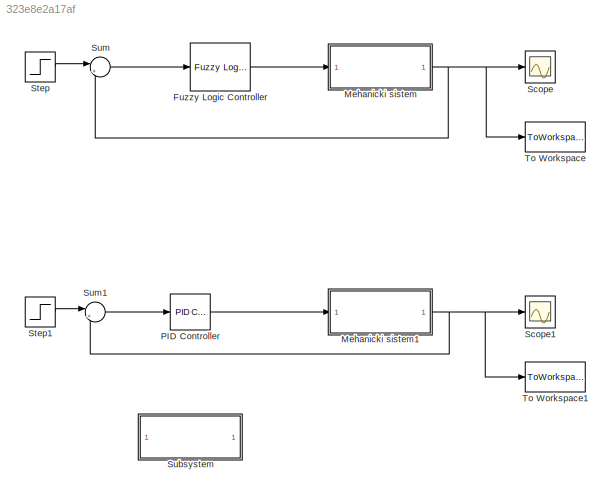
MODEL slx_323e8e2a17af
KIND model
CONFIG AbsTol = auto
CONFIG EnableMultiTasking = off
CONFIG FixedStep = auto
CONFIG MaxStep = auto
CONFIG MinStep = auto
CONFIG RelTol = 1e-3
CONFIG SampleTimeConstraint = Unconstrained
CONFIG Solver = VariableStepAuto
CONFIG SolverName = VariableStepAuto
CONFIG StartTime = 0.0
CONFIG StopTime = 10
BLOCK [Reference] Fuzzy Logic  Controller  REF=fuzblock/Fuzzy Logic   (lib defined in mdl_858b3b3e7478)
Controller
  Ports = [1, 1]
  SourceBlock = fuzblock/Fuzzy Logic \nController
  SourceProductBaseCode = FL
  SourceType = Fuzzy Inference System
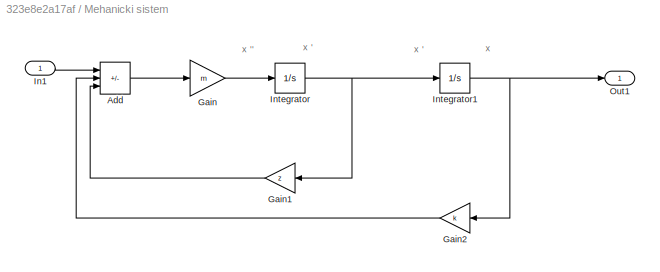
BLOCK [SubSystem] Mehanicki sistem
  Ports = [1, 1]
  RequestExecContextInheritance = off
BLOCK [Sum] Mehanicki sistem/Add
  IconShape = rectangular
  Inputs = +--
  Ports = [3, 1]
BLOCK [Gain] Mehanicki sistem/Gain
  Gain = m
BLOCK [Gain] Mehanicki sistem/Gain1
  Gain = z
  NameLocation = top
BLOCK [Gain] Mehanicki sistem/Gain2
  Gain = k
  NameLocation = top
BLOCK [Inport] Mehanicki sistem/In1
BLOCK [Integrator] Mehanicki sistem/Integrator
  Ports = [1, 1]
BLOCK [Integrator] Mehanicki sistem/Integrator1
  Ports = [1, 1]
BLOCK [Outport] Mehanicki sistem/Out1
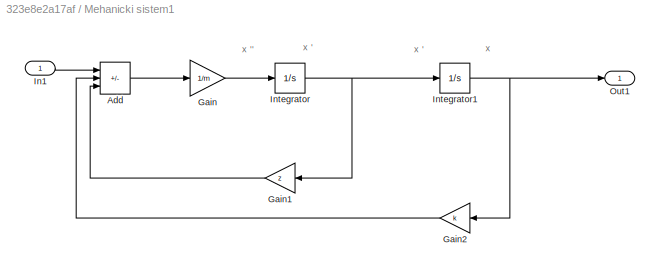
BLOCK [SubSystem] Mehanicki sistem1
  Ports = [1, 1]
  RequestExecContextInheritance = off
BLOCK [Sum] Mehanicki sistem1/Add
  IconShape = rectangular
  Inputs = +--
  Ports = [3, 1]
BLOCK [Gain] Mehanicki sistem1/Gain
  Gain = 1/m
BLOCK [Gain] Mehanicki sistem1/Gain1
  Gain = z
  NameLocation = top
BLOCK [Gain] Mehanicki sistem1/Gain2
  Gain = k
  NameLocation = top
BLOCK [Inport] Mehanicki sistem1/In1
BLOCK [Integrator] Mehanicki sistem1/Integrator
  Ports = [1, 1]
BLOCK [Integrator] Mehanicki sistem1/Integrator1
  Ports = [1, 1]
BLOCK [Outport] Mehanicki sistem1/Out1
BLOCK [Reference] PID Controller  REF=simulink/Continuous/PID Controller
  Ports = [1, 1]
  SourceBlock = simulink/Continuous/PID Controller
  SourceProductBaseCode = SL
  SourceType = PID 1dof
BLOCK [Scope] Scope
  Floating = off
  NumInputPorts = 1
  Ports = [1]
  ScopeSpecificationString = Simulink.scopes.TimeScopeBlockCfg('CurrentConfiguration', extmgr.ConfigurationSet(extmgr.Configuration('Core','General UI',true),extmgr.Configuration('Core','Source UI',true),extmgr.Configuration('Sources','WiredSimulink',true,'DataLoggingSaveFormat','StructureWithTime','DataLoggingLimitDataPoints',true,'DataLoggingDecimation','1','DataLoggingDecimateData',true),extmgr.Configuration('Visuals','Tim...<+1685ch>
BLOCK [Scope] Scope1
  Floating = off
  NumInputPorts = 1
  Ports = [1]
  ScopeSpecificationString = Simulink.scopes.TimeScopeBlockCfg('CurrentConfiguration', extmgr.ConfigurationSet(extmgr.Configuration('Core','General UI',true),extmgr.Configuration('Core','Source UI',true),extmgr.Configuration('Sources','WiredSimulink',true,'DataLoggingSaveFormat','StructureWithTime','DataLoggingLimitDataPoints',true,'DataLoggingDecimation','1','DataLoggingDecimateData',true,'DataLoggingVariableName','ScopeData...<+1703ch>
BLOCK [Step] Step
  SampleTime = 0
  Time = 0
BLOCK [Step] Step1
  After = 100
  SampleTime = 0
  Time = 0
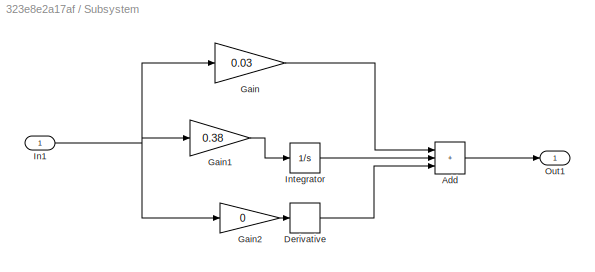
BLOCK [SubSystem] Subsystem
  Ports = [1, 1]
  RequestExecContextInheritance = off
BLOCK [Sum] Subsystem/Add
  IconShape = rectangular
  Inputs = +++
  Ports = [3, 1]
BLOCK [Derivative] Subsystem/Derivative
BLOCK [Gain] Subsystem/Gain
  Gain = 0.03
BLOCK [Gain] Subsystem/Gain1
  Gain = 0.38
BLOCK [Gain] Subsystem/Gain2
  Gain = 0
BLOCK [Inport] Subsystem/In1
BLOCK [Integrator] Subsystem/Integrator
  Ports = [1, 1]
BLOCK [Outport] Subsystem/Out1
BLOCK [Sum] Sum
  Inputs = |+-
  Ports = [2, 1]
BLOCK [Sum] Sum1
  Inputs = |+-
  Ports = [2, 1]
BLOCK [ToWorkspace] To Workspace
  MaxDataPoints = inf
  Ports = [1]
  SampleTime = -1
  VariableName = silaFuzzy
BLOCK [ToWorkspace] To Workspace1
  MaxDataPoints = inf
  Ports = [1]
  SampleTime = -1
  VariableName = silaPID
ANNOTATION Mehanicki sistem: x
ANNOTATION Mehanicki sistem: x '
ANNOTATION Mehanicki sistem: x ''
ANNOTATION Mehanicki sistem1: x
ANNOTATION Mehanicki sistem1: x '
ANNOTATION Mehanicki sistem1: x ''
LINE Fuzzy Logic  Controller:1 -> Mehanicki sistem:1
LINE Mehanicki sistem/Add:1 -> Mehanicki sistem/Gain:1
LINE Mehanicki sistem/Gain1:1 -> Mehanicki sistem/Add:3
LINE Mehanicki sistem/Gain2:1 -> Mehanicki sistem/Add:2
LINE Mehanicki sistem/Gain:1 -> Mehanicki sistem/Integrator:1
LINE Mehanicki sistem/In1:1 -> Mehanicki sistem/Add:1
NET Mehanicki sistem/Integrator1:1 -> Mehanicki sistem/Gain2:1, Mehanicki sistem/Out1:1
NET Mehanicki sistem/Integrator:1 -> Mehanicki sistem/Gain1:1, Mehanicki sistem/Integrator1:1
LINE Mehanicki sistem1/Add:1 -> Mehanicki sistem1/Gain:1
LINE Mehanicki sistem1/Gain1:1 -> Mehanicki sistem1/Add:3
LINE Mehanicki sistem1/Gain2:1 -> Mehanicki sistem1/Add:2
LINE Mehanicki sistem1/Gain:1 -> Mehanicki sistem1/Integrator:1
LINE Mehanicki sistem1/In1:1 -> Mehanicki sistem1/Add:1
NET Mehanicki sistem1/Integrator1:1 -> Mehanicki sistem1/Gain2:1, Mehanicki sistem1/Out1:1
NET Mehanicki sistem1/Integrator:1 -> Mehanicki sistem1/Gain1:1, Mehanicki sistem1/Integrator1:1
NET Mehanicki sistem1:1 -> Scope1:1, Sum1:2, To Workspace1:1
NET Mehanicki sistem:1 -> Scope:1, Sum:2, To Workspace:1
LINE PID Controller:1 -> Mehanicki sistem1:1
LINE Step1:1 -> Sum1:1
LINE Step:1 -> Sum:1
LINE Subsystem/Add:1 -> Subsystem/Out1:1
LINE Subsystem/Derivative:1 -> Subsystem/Add:3
LINE Subsystem/Gain1:1 -> Subsystem/Integrator:1
LINE Subsystem/Gain2:1 -> Subsystem/Derivative:1
LINE Subsystem/Gain:1 -> Subsystem/Add:1
NET Subsystem/In1:1 -> Subsystem/Gain1:1, Subsystem/Gain2:1, Subsystem/Gain:1
LINE Subsystem/Integrator:1 -> Subsystem/Add:2
LINE Sum1:1 -> PID Controller:1
LINE Sum:1 -> Fuzzy Logic  Controller:1
note: NET lines group one-source signal fan-out (src -> all destinations, sorted); 1:1 wires keep LINE
